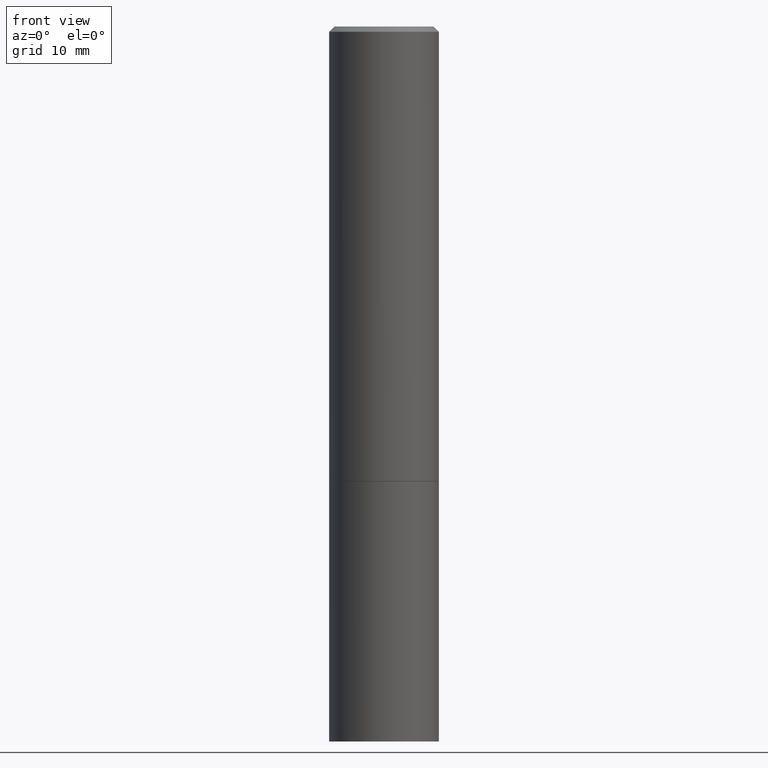
[diagram: clean part render]
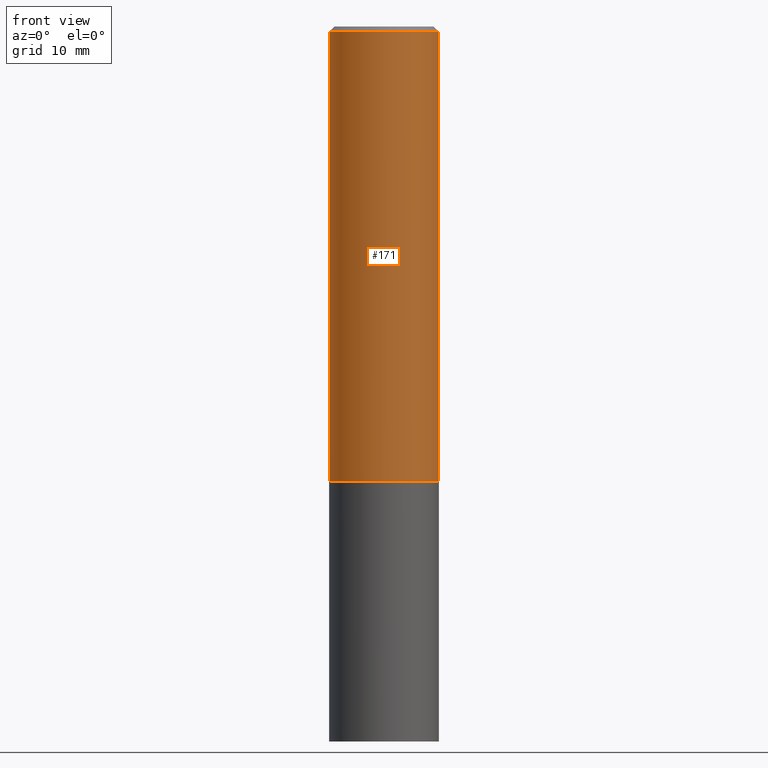
[diagram: same view with one face highlighted and labeled with its STEP entity id]
A machine part, front view. The second image highlights one B-rep face of the part: STEP entity #171.
In plain terms, the highlighted cylindrical surface (partial cylindrical patch) has radius 5.3581 mm, axis along (-0, 0, 1).
Its self-contained STEP definition (entity closure, byte-faithful):
#4 = EDGE_CURVE ( 'NONE', #153, #339, #309, .T. ) ;
#26 = DIRECTION ( 'NONE',  ( -2.445468806185136597E-29, 3.491481338843145583E-15, 1.000000000000000000 ) ) ;
#43 = CARTESIAN_POINT ( 'NONE',  ( -0.2109499999999999154, 1.498889901085930741E-15, -1.037649357289271961E-29 ) ) ;
#49 = AXIS2_PLACEMENT_3D ( 'NONE', #160, #26, #108 ) ;
#51 = CARTESIAN_POINT ( 'NONE',  ( -0.2109499999999999986, -1.589325343120829965E-15, -1.748999999999999888 ) ) ;
#61 = CIRCLE ( 'NONE', #118, 0.2109499999999998043 ) ;
#62 = DIRECTION ( 'NONE',  ( 1.000000000000000000, -6.982962677686266711E-15, 0.000000000000000000 ) ) ;
#97 = ORIENTED_EDGE ( 'NONE', *, *, #173, .T. ) ;
#108 = DIRECTION ( 'NONE',  ( 1.000000000000000000, -6.982962677686265922E-15, 4.876176775795935793E-29 ) ) ;
#118 = AXIS2_PLACEMENT_3D ( 'NONE', #175, #325, #62 ) ;
#126 = VECTOR ( 'NONE', #259, 39.37007874015748143 ) ;
#142 = CARTESIAN_POINT ( 'NONE',  ( 0.2109499999999999154, -1.473055976857917171E-15, 1.028629490854152208E-29 ) ) ;
#150 = CIRCLE ( 'NONE', #243, 0.2109499999999999986 ) ;
#153 = VERTEX_POINT ( 'NONE', #51 ) ;
#160 = CARTESIAN_POINT ( 'NONE',  ( 0.000000000000000000, 0.000000000000000000, 0.000000000000000000 ) ) ;
#166 = FACE_OUTER_BOUND ( 'NONE', #271, .T. ) ;
#171 = ADVANCED_FACE ( 'NONE', ( #166 ), #289, .T. ) ;
#173 = EDGE_CURVE ( 'NONE', #153, #247, #150, .T. ) ;
#175 = CARTESIAN_POINT ( 'NONE',  ( 4.890937612370285420E-31, -6.982962677686308865E-17, -0.02000000000000005246 ) ) ;
#177 = CARTESIAN_POINT ( 'NONE',  ( -0.2109499999999998043, 1.403226350081053478E-15, -0.02000000000000005246 ) ) ;
#196 = ORIENTED_EDGE ( 'NONE', *, *, #376, .T. ) ;
#199 = CARTESIAN_POINT ( 'NONE',  ( 0.2109499999999998043, -1.517051679406766110E-15, -0.02000000000000005246 ) ) ;
#203 = ORIENTED_EDGE ( 'NONE', *, *, #308, .F. ) ;
#221 = CARTESIAN_POINT ( 'NONE',  ( 4.277124942017804002E-29, -6.106600861636660875E-15, -1.748999999999999888 ) ) ;
#230 = CARTESIAN_POINT ( 'NONE',  ( 0.2109499999999999986, -7.579656838494578440E-15, -1.748999999999999888 ) ) ;
#243 = AXIS2_PLACEMENT_3D ( 'NONE', #221, #320, #285 ) ;
#247 = VERTEX_POINT ( 'NONE', #230 ) ;
#259 = DIRECTION ( 'NONE',  ( -2.445468806185136877E-29, 3.491481338843145188E-15, 1.000000000000000000 ) ) ;
#271 = EDGE_LOOP ( 'NONE', ( #326, #97, #196, #203 ) ) ;
#285 = DIRECTION ( 'NONE',  ( 1.000000000000000000, -6.982962677686266711E-15, 0.000000000000000000 ) ) ;
#289 = CYLINDRICAL_SURFACE ( 'NONE', #49, 0.2109499999999999154 ) ;
#308 = EDGE_CURVE ( 'NONE', #339, #337, #61, .T. ) ;
#309 = LINE ( 'NONE', #43, #372 ) ;
#320 = DIRECTION ( 'NONE',  ( -2.445468806185136597E-29, 3.491481338843145583E-15, 1.000000000000000000 ) ) ;
#325 = DIRECTION ( 'NONE',  ( -2.445468806185136597E-29, 3.491481338843145583E-15, 1.000000000000000000 ) ) ;
#326 = ORIENTED_EDGE ( 'NONE', *, *, #4, .F. ) ;
#337 = VERTEX_POINT ( 'NONE', #199 ) ;
#339 = VERTEX_POINT ( 'NONE', #177 ) ;
#341 = DIRECTION ( 'NONE',  ( -2.445468806185136877E-29, 3.491481338843145188E-15, 1.000000000000000000 ) ) ;
#354 = LINE ( 'NONE', #142, #126 ) ;
#372 = VECTOR ( 'NONE', #341, 39.37007874015748143 ) ;
#376 = EDGE_CURVE ( 'NONE', #247, #337, #354, .T. ) ;